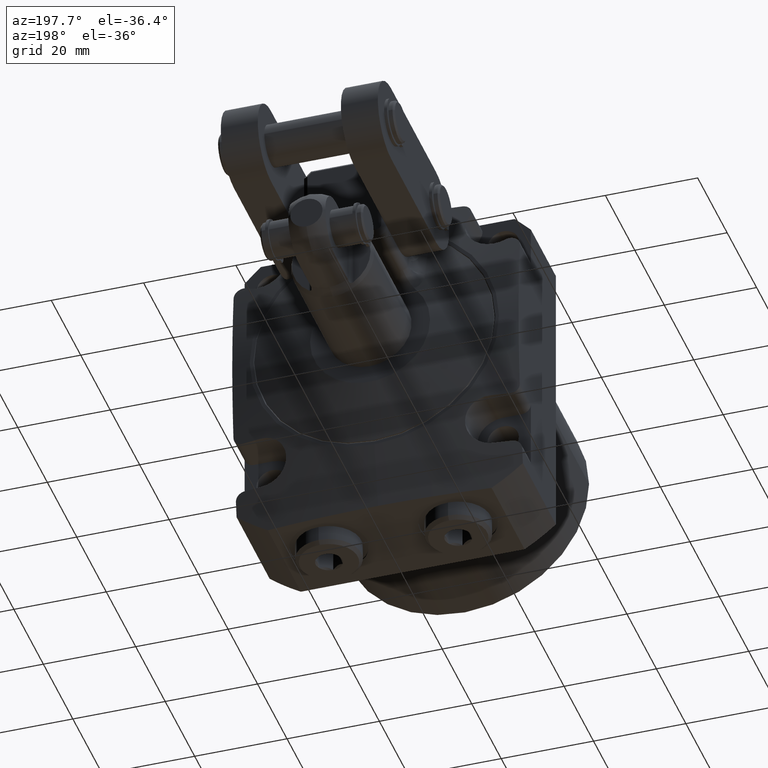
[diagram: clean part render]
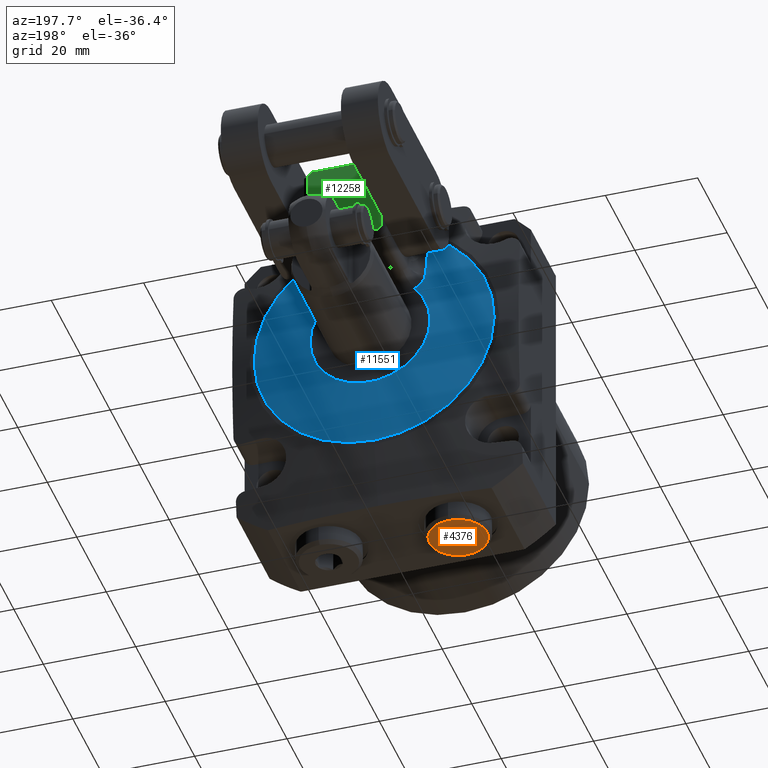
[diagram: same view with three faces highlighted in distinct colors, each labeled with its STEP entity id]
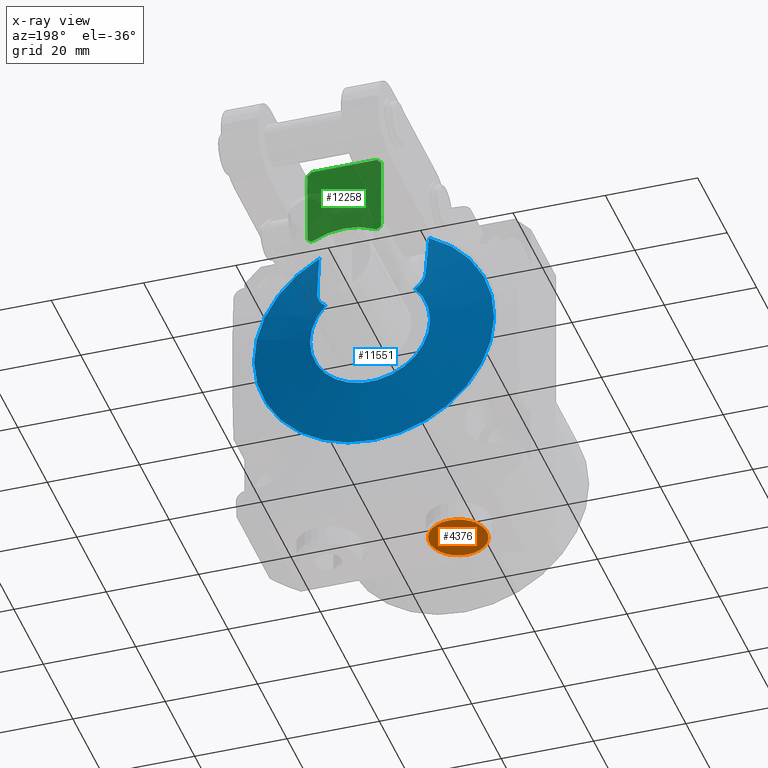
[diagram: x-ray of the same camera — body ghosted, the three highlighted faces saturated]
A machine part, auxiliary view with three faces highlighted in distinct colors.
The next image is the same camera in x-ray (body ghosted, the three faces saturated) — at least one of them is partly hidden behind the body in this view.
Their STEP definitions:

[orange] entity #4376 — the highlighted planar face has unit normal (0, 0, -1).
#1596=CARTESIAN_POINT('',(-1.4E1,1.3E1,-4.481E1));
#1597=DIRECTION('',(0.E0,0.E0,-1.E0));
#1598=DIRECTION('',(0.E0,1.E0,0.E0));
#1599=AXIS2_PLACEMENT_3D('',#1596,#1597,#1598);
#1604=CARTESIAN_POINT('',(-1.4E1,1.3E1,-4.481E1));
#1605=DIRECTION('',(0.E0,0.E0,1.E0));
#1606=DIRECTION('',(0.E0,1.E0,0.E0));
#1607=AXIS2_PLACEMENT_3D('',#1604,#1605,#1606);
#1643=CARTESIAN_POINT('',(-1.4E1,1.3E1,-4.481E1));
#1644=DIRECTION('',(0.E0,0.E0,1.E0));
#1645=DIRECTION('',(0.E0,1.E0,0.E0));
#1646=AXIS2_PLACEMENT_3D('',#1643,#1644,#1645);
#1727=CARTESIAN_POINT('',(-1.4E1,1.3E1,-4.481E1));
#1728=DIRECTION('',(0.E0,0.E0,-1.E0));
#1729=DIRECTION('',(0.E0,1.E0,0.E0));
#1730=AXIS2_PLACEMENT_3D('',#1727,#1728,#1729);
#3102=CARTESIAN_POINT('',(-1.4E1,1.925E1,-4.481E1));
#3104=VERTEX_POINT('',#3102);
#3106=CARTESIAN_POINT('',(-1.4E1,6.75E0,-4.481E1));
#3108=VERTEX_POINT('',#3106);
#3109=CARTESIAN_POINT('',(-1.4E1,1.59E1,-4.481E1));
#3110=CARTESIAN_POINT('',(-1.4E1,1.01E1,-4.481E1));
#3111=VERTEX_POINT('',#3109);
#3112=VERTEX_POINT('',#3110);
#4361=CARTESIAN_POINT('',(-1.4E1,1.3E1,-4.481E1));
#4362=DIRECTION('',(0.E0,0.E0,-1.E0));
#4363=DIRECTION('',(0.E0,1.E0,0.E0));
#4364=AXIS2_PLACEMENT_3D('',#4361,#4362,#4363);
#4365=PLANE('',#4364);
#4366=ORIENTED_EDGE('',*,*,#4354,.F.);
#4367=ORIENTED_EDGE('',*,*,#4343,.T.);
#4368=EDGE_LOOP('',(#4366,#4367));
#4369=FACE_OUTER_BOUND('',#4368,.F.);
#4371=ORIENTED_EDGE('',*,*,#4370,.F.);
#4373=ORIENTED_EDGE('',*,*,#4372,.T.);
#4374=EDGE_LOOP('',(#4371,#4373));
#4375=FACE_BOUND('',#4374,.F.);
#4376=ADVANCED_FACE('',(#4369,#4375),#4365,.T.);
#1600=CIRCLE('',#1599,6.25E0);
#1608=CIRCLE('',#1607,6.25E0);
#1647=CIRCLE('',#1646,2.9E0);
#1731=CIRCLE('',#1730,2.9E0);
#4343=EDGE_CURVE('',#3104,#3108,#1608,.T.);
#4354=EDGE_CURVE('',#3104,#3108,#1600,.T.);
#4370=EDGE_CURVE('',#3111,#3112,#1647,.T.);
#4372=EDGE_CURVE('',#3111,#3112,#1731,.T.);

[blue] entity #11551 — the highlighted conical surface has half-angle 78 deg.
#6299=CARTESIAN_POINT('',(1.173286124812E1,1.157568833795E1,1.277947405304E1));
#6300=CARTESIAN_POINT('',(1.174137330143E1,1.150281560562E1,1.323707906409E1));
#6301=CARTESIAN_POINT('',(1.175759570921E1,1.135547771065E1,1.414140609974E1));
#6302=CARTESIAN_POINT('',(1.177937473711E1,1.113501772331E1,1.544816614601E1));
#6303=CARTESIAN_POINT('',(1.179925147185E1,1.091189610693E1,1.673412340719E1));
#6304=CARTESIAN_POINT('',(1.181758104242E1,1.068454308871E1,1.801445669727E1));
#6305=CARTESIAN_POINT('',(1.183476066261E1,1.044958559421E1,1.931186735930E1));
#6306=CARTESIAN_POINT('',(1.185056606210E1,1.021137507196E1,2.060500314446E1));
#6307=CARTESIAN_POINT('',(1.186456020255E1,9.980758016541E0,2.183970389204E1));
#6308=CARTESIAN_POINT('',(1.187358627386E1,9.818695521872E0,2.269714066417E1));
#6309=CARTESIAN_POINT('',(1.187795309791E1,9.736764767572E0,2.312821287203E1));
#6314=CARTESIAN_POINT('',(9.653303455383E0,1.250000000958E1,8.707108168735E0));
#6315=CARTESIAN_POINT('',(9.848973223570E0,1.244766421699E1,8.857783626914E0));
#6316=CARTESIAN_POINT('',(1.024137166663E1,1.233676397564E1,9.201697761943E0));
#6317=CARTESIAN_POINT('',(1.081255913785E1,1.214986534488E1,9.881406334893E0));
#6318=CARTESIAN_POINT('',(1.131211893465E1,1.194654773599E1,1.075018451107E1));
#6319=CARTESIAN_POINT('',(1.164587016363E1,1.174646127685E1,1.175642198022E1));
#6320=CARTESIAN_POINT('',(1.172641334963E1,1.163078494293E1,1.243364656851E1));
#6321=CARTESIAN_POINT('',(1.173286124812E1,1.157568833795E1,1.277947405304E1));
#6326=CARTESIAN_POINT('',(0.E0,1.25E1,0.E0));
#6327=DIRECTION('',(0.E0,1.E0,0.E0));
#6328=DIRECTION('',(7.425619694986E-1,0.E0,6.697773670813E-1));
#6329=AXIS2_PLACEMENT_3D('',#6326,#6327,#6328);
#6334=CARTESIAN_POINT('',(-1.173286124835E1,1.157568833937E1,1.277947405407E1));
#6335=CARTESIAN_POINT('',(-1.172641122006E1,1.163080229346E1,1.243353836923E1));
#6336=CARTESIAN_POINT('',(-1.164583155253E1,1.174651090407E1,1.175613342352E1));
#6337=CARTESIAN_POINT('',(-1.131185859773E1,1.194667797465E1,1.074956881709E1));
#6338=CARTESIAN_POINT('',(-1.081219144094E1,1.214999430711E1,9.880907966624E0));
#6339=CARTESIAN_POINT('',(-1.024117251962E1,1.233682098464E1,9.201518161652E0));
#6340=CARTESIAN_POINT('',(-9.848897211423E0,1.244768455398E1,8.857725004299E0));
#6341=CARTESIAN_POINT('',(-9.653303497855E0,1.250000001027E1,8.707108124694E0));
#6346=CARTESIAN_POINT('',(-1.187795308276E1,9.736764767169E0,2.312821288028E1));
#6347=CARTESIAN_POINT('',(-1.187357655916E1,9.818877493008E0,2.269618327905E1));
#6348=CARTESIAN_POINT('',(-1.186453554018E1,9.981184437271E0,2.183743632157E1));
#6349=CARTESIAN_POINT('',(-1.185054845314E1,1.021164698711E1,2.060353293471E1));
#6350=CARTESIAN_POINT('',(-1.183474837742E1,1.044976199171E1,1.931090184627E1));
#6351=CARTESIAN_POINT('',(-1.181756414235E1,1.068476532471E1,1.801322023957E1));
#6352=CARTESIAN_POINT('',(-1.179923046371E1,1.091214431987E1,1.673271040428E1));
#6353=CARTESIAN_POINT('',(-1.177935457499E1,1.113523072511E1,1.544691896488E1));
#6354=CARTESIAN_POINT('',(-1.175758257856E1,1.135560011257E1,1.414066136560E1));
#6355=CARTESIAN_POINT('',(-1.174136820176E1,1.150285909111E1,1.323680617585E1));
#6356=CARTESIAN_POINT('',(-1.173286124835E1,1.157568833937E1,1.277947405407E1));
#6361=CARTESIAN_POINT('',(0.E0,9.736764698290E0,0.E0));
#6362=DIRECTION('',(0.E0,-1.E0,0.E0));
#6363=DIRECTION('',(-4.568443423330E-1,0.E0,8.895466524463E-1));
#6364=AXIS2_PLACEMENT_3D('',#6361,#6362,#6363);
#6369=CARTESIAN_POINT('',(0.E0,9.736764698290E0,0.E0));
#6370=DIRECTION('',(0.E0,-1.E0,0.E0));
#6371=DIRECTION('',(0.E0,0.E0,-1.E0));
#6372=AXIS2_PLACEMENT_3D('',#6369,#6370,#6371);
#10791=CARTESIAN_POINT('',(0.E0,9.736764698290E0,-2.6E1));
#10792=VERTEX_POINT('',#10791);
#10797=VERTEX_POINT('',#6299);
#10798=VERTEX_POINT('',#6309);
#10799=VERTEX_POINT('',#6314);
#10816=VERTEX_POINT('',#6346);
#10817=VERTEX_POINT('',#6356);
#10819=VERTEX_POINT('',#6341);
#11531=CARTESIAN_POINT('',(0.E0,1.111838235041E1,0.E0));
#11532=DIRECTION('',(0.E0,-1.E0,0.E0));
#11533=DIRECTION('',(0.E0,0.E0,1.E0));
#11534=AXIS2_PLACEMENT_3D('',#11531,#11532,#11533);
#11535=CONICAL_SURFACE('',#11534,1.949999999405E1,7.8E1);
#11537=ORIENTED_EDGE('',*,*,#11536,.F.);
#11539=ORIENTED_EDGE('',*,*,#11538,.F.);
#11541=ORIENTED_EDGE('',*,*,#11540,.T.);
#11543=ORIENTED_EDGE('',*,*,#11542,.F.);
#11545=ORIENTED_EDGE('',*,*,#11544,.F.);
#11546=ORIENTED_EDGE('',*,*,#11517,.T.);
#11548=ORIENTED_EDGE('',*,*,#11547,.T.);
#11549=EDGE_LOOP('',(#11537,#11539,#11541,#11543,#11545,#11546,#11548));
#11550=FACE_OUTER_BOUND('',#11549,.F.);
#11551=ADVANCED_FACE('',(#11550),#11535,.T.);
#6310=B_SPLINE_CURVE_WITH_KNOTS('',3,(#6299,#6300,#6301,#6302,#6303,#6304,#6305,
#6306,#6307,#6308,#6309),.UNSPECIFIED.,.F.,.F.,(4,1,1,1,1,1,1,1,4),(0.E0,
1.25E-1,2.5E-1,3.75E-1,5.E-1,6.25E-1,7.5E-1,8.75E-1,1.E0),.UNSPECIFIED.);
#6322=B_SPLINE_CURVE_WITH_KNOTS('',3,(#6314,#6315,#6316,#6317,#6318,#6319,#6320,
#6321),.UNSPECIFIED.,.F.,.F.,(4,1,1,1,1,4),(0.E0,2.E-1,4.E-1,6.E-1,8.E-1,1.E0),
.UNSPECIFIED.);
#6330=CIRCLE('',#6329,1.3E1);
#6342=B_SPLINE_CURVE_WITH_KNOTS('',3,(#6334,#6335,#6336,#6337,#6338,#6339,#6340,
#6341),.UNSPECIFIED.,.F.,.F.,(4,1,1,1,1,4),(0.E0,2.E-1,4.E-1,6.E-1,8.E-1,1.E0),
.UNSPECIFIED.);
#6357=B_SPLINE_CURVE_WITH_KNOTS('',3,(#6346,#6347,#6348,#6349,#6350,#6351,#6352,
#6353,#6354,#6355,#6356),.UNSPECIFIED.,.F.,.F.,(4,1,1,1,1,1,1,1,4),(0.E0,
1.25E-1,2.5E-1,3.75E-1,5.E-1,6.25E-1,7.5E-1,8.75E-1,1.E0),.UNSPECIFIED.);
#6365=CIRCLE('',#6364,2.6E1);
#6373=CIRCLE('',#6372,2.6E1);
#11517=EDGE_CURVE('',#10816,#10792,#6365,.T.);
#11536=EDGE_CURVE('',#10797,#10798,#6310,.T.);
#11538=EDGE_CURVE('',#10799,#10797,#6322,.T.);
#11540=EDGE_CURVE('',#10799,#10819,#6330,.T.);
#11542=EDGE_CURVE('',#10817,#10819,#6342,.T.);
#11544=EDGE_CURVE('',#10816,#10817,#6357,.T.);
#11547=EDGE_CURVE('',#10792,#10798,#6373,.T.);

[green] entity #12258 — the highlighted planar face has unit normal (0, 1, 0).
#7031=DIRECTION('',(-2.465699141996E-7,2.464494951361E-7,9.999999999999E-1));
#7032=VECTOR('',#7031,1.581928727043E1);
#7033=CARTESIAN_POINT('',(-7.999996099440E0,2.999999610134E1,1.326649916719E1));
#7034=LINE('',#7033,#7032);
#7038=CARTESIAN_POINT('',(-7.E0,2.999999243534E1,1.326649916142E1));
#7039=DIRECTION('',(0.E0,1.E0,0.E0));
#7040=DIRECTION('',(4.666666666667E-1,0.E0,-8.844332774281E-1));
#7041=AXIS2_PLACEMENT_3D('',#7038,#7039,#7040);
#7046=CARTESIAN_POINT('',(0.E0,2.999993665899E1,5.684341886081E-14));
#7047=DIRECTION('',(0.E0,-1.E0,0.E0));
#7048=DIRECTION('',(4.666666666667E-1,0.E0,8.844332774281E-1));
#7049=AXIS2_PLACEMENT_3D('',#7046,#7047,#7048);
#7054=CARTESIAN_POINT('',(7.E0,2.999999243536E1,1.326649916142E1));
#7055=DIRECTION('',(0.E0,1.E0,0.E0));
#7056=DIRECTION('',(1.E0,0.E0,0.E0));
#7057=AXIS2_PLACEMENT_3D('',#7054,#7055,#7056);
#7062=DIRECTION('',(-2.465693924976E-7,-2.464489738833E-7,-9.999999999999E-1));
#7063=VECTOR('',#7062,1.581928727043E1);
#7064=CARTESIAN_POINT('',(8.E0,3.E1,2.908578643763E1));
#7065=LINE('',#7064,#7063);
#7069=DIRECTION('',(7.071067811865E-1,0.E0,-7.071067811866E-1));
#7070=VECTOR('',#7069,1.292893218813E0);
#7071=CARTESIAN_POINT('',(7.085786437627E0,3.E1,3.E1));
#7072=LINE('',#7071,#7070);
#7076=DIRECTION('',(1.E0,0.E0,0.E0));
#7077=VECTOR('',#7076,1.417157287525E1);
#7078=CARTESIAN_POINT('',(-7.085786437627E0,3.E1,3.E1));
#7079=LINE('',#7078,#7077);
#7083=DIRECTION('',(7.071067811865E-1,0.E0,7.071067811865E-1));
#7084=VECTOR('',#7083,1.292893218813E0);
#7085=CARTESIAN_POINT('',(-8.E0,3.E1,2.908578643763E1));
#7086=LINE('',#7085,#7084);
#10824=CARTESIAN_POINT('',(-7.999996099440E0,2.999999610134E1,
1.326649916719E1));
#10825=CARTESIAN_POINT('',(-8.E0,3.E1,2.908578643763E1));
#10826=VERTEX_POINT('',#10824);
#10827=VERTEX_POINT('',#10825);
#10828=CARTESIAN_POINT('',(-6.533340722015E0,2.999999243534E1,
1.238207988713E1));
#10829=VERTEX_POINT('',#10828);
#10830=CARTESIAN_POINT('',(6.533358857686E0,2.999993665899E1,1.238211425811E1));
#10831=VERTEX_POINT('',#10830);
#10836=CARTESIAN_POINT('',(7.999984167141E0,2.999999243536E1,1.326649916142E1));
#10837=VERTEX_POINT('',#10836);
#10838=CARTESIAN_POINT('',(8.E0,3.E1,2.908578643763E1));
#10839=VERTEX_POINT('',#10838);
#10840=CARTESIAN_POINT('',(7.085786437627E0,3.E1,3.E1));
#10841=VERTEX_POINT('',#10840);
#10846=CARTESIAN_POINT('',(-7.085786437627E0,3.E1,3.E1));
#10847=VERTEX_POINT('',#10846);
#12241=CARTESIAN_POINT('',(0.E0,3.E1,0.E0));
#12242=DIRECTION('',(0.E0,1.E0,0.E0));
#12243=DIRECTION('',(1.E0,0.E0,0.E0));
#12244=AXIS2_PLACEMENT_3D('',#12241,#12242,#12243);
#12245=PLANE('',#12244);
#12246=ORIENTED_EDGE('',*,*,#12206,.F.);
#12247=ORIENTED_EDGE('',*,*,#12220,.F.);
#12248=ORIENTED_EDGE('',*,*,#12231,.F.);
#12250=ORIENTED_EDGE('',*,*,#12249,.F.);
#12251=ORIENTED_EDGE('',*,*,#11788,.F.);
#12252=ORIENTED_EDGE('',*,*,#11804,.F.);
#12254=ORIENTED_EDGE('',*,*,#12253,.F.);
#12255=ORIENTED_EDGE('',*,*,#12191,.F.);
#12256=EDGE_LOOP('',(#12246,#12247,#12248,#12250,#12251,#12252,#12254,#12255));
#12257=FACE_OUTER_BOUND('',#12256,.F.);
#12258=ADVANCED_FACE('',(#12257),#12245,.T.);
#7042=CIRCLE('',#7041,9.999841671116E-1);
#7050=CIRCLE('',#7049,1.400005469504E1);
#7058=CIRCLE('',#7057,9.999841671409E-1);
#11788=EDGE_CURVE('',#10839,#10837,#7065,.T.);
#11804=EDGE_CURVE('',#10841,#10839,#7072,.T.);
#12191=EDGE_CURVE('',#10827,#10847,#7086,.T.);
#12206=EDGE_CURVE('',#10826,#10827,#7034,.T.);
#12220=EDGE_CURVE('',#10829,#10826,#7042,.T.);
#12231=EDGE_CURVE('',#10831,#10829,#7050,.T.);
#12249=EDGE_CURVE('',#10837,#10831,#7058,.T.);
#12253=EDGE_CURVE('',#10847,#10841,#7079,.T.);